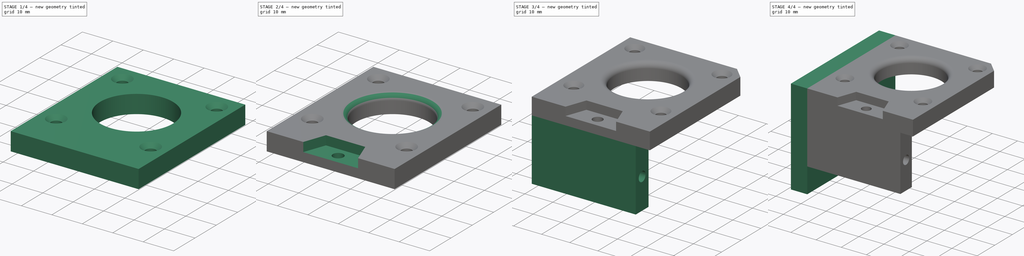
[diagram: build sequence overview — one tinted view per stage of 4, left to right]
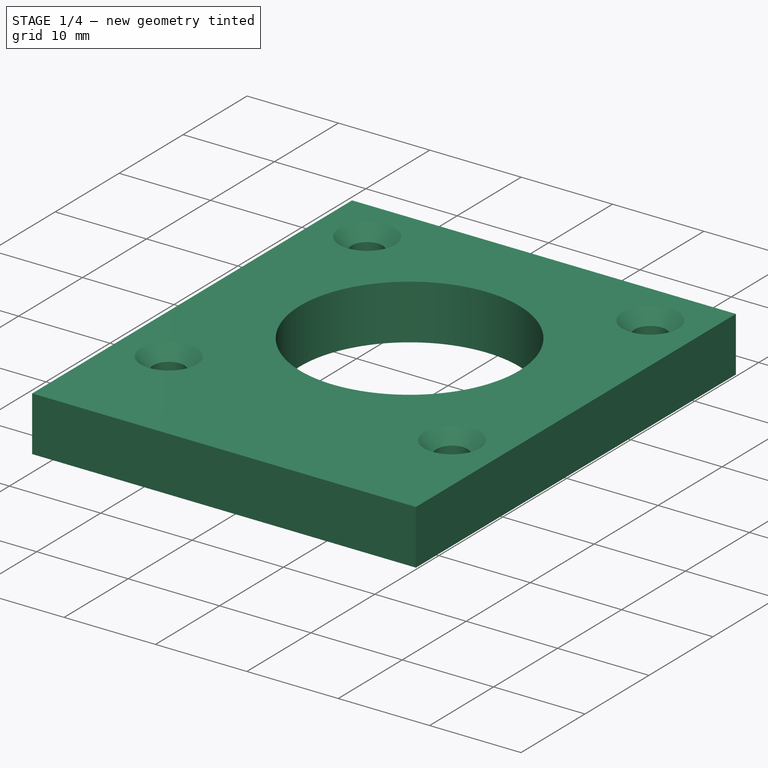
[diagram: stage 1 of 4 — iso view after this stage's code; geometry added in this stage tinted green]
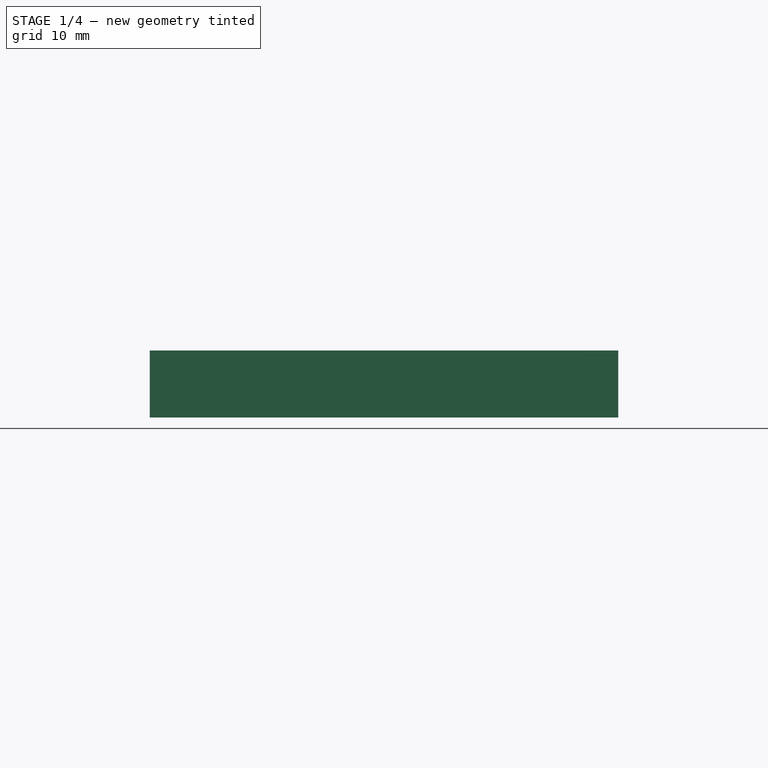
[diagram: stage 1 of 4 — front view after this stage's code; geometry added in this stage tinted green]
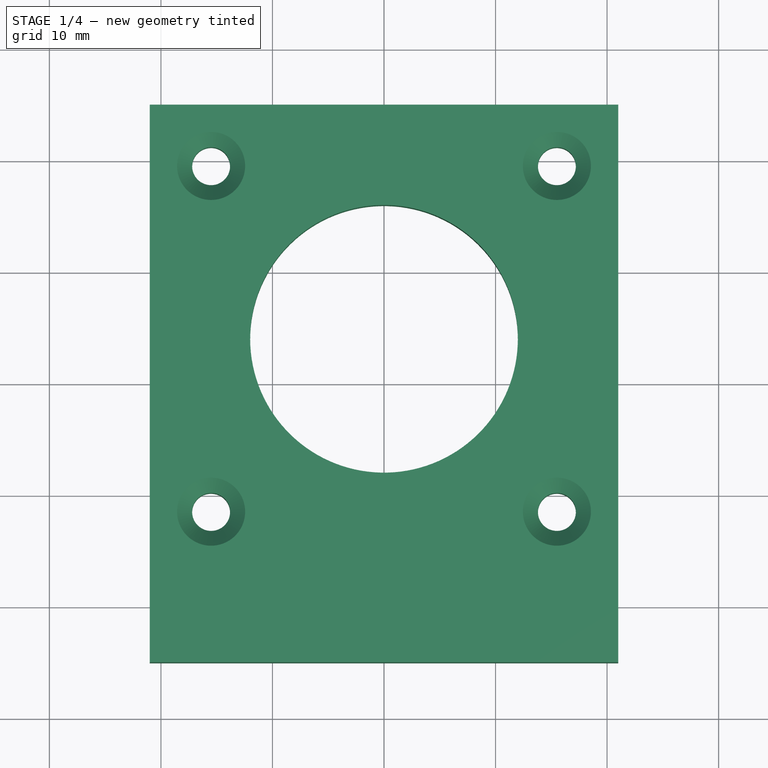
[diagram: stage 1 of 4 — top view after this stage's code; geometry added in this stage tinted green]
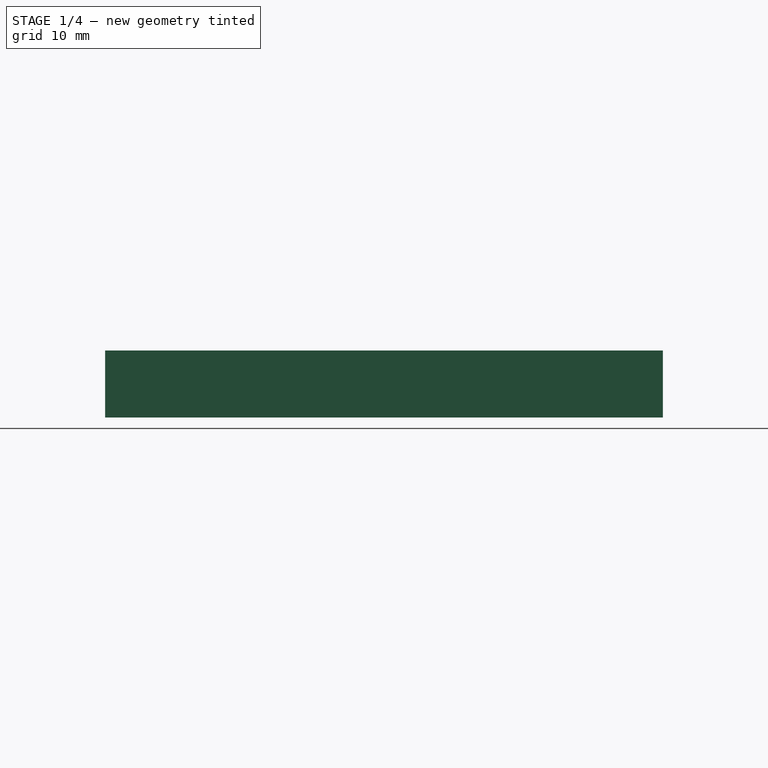
[diagram: stage 1 of 4 — right view after this stage's code; geometry added in this stage tinted green]
FCSTD DOCUMENT  (FreeCAD 0.22R38334 (Git))
Label: MH004-1
License: All rights reserved
LicenseURL: http://en.wikipedia.org/wiki/All_rights_reserved
objects: Sketcher::SketchObject×10, PartDesign::Pocket×5, PartDesign::SubShapeBinder×4, PartDesign::Body×4, PartDesign::Pad×3, PartDesign::Hole×2, PartDesign::Fillet×1, PartDesign::Chamfer×1, Part::MultiFuse×1, App::Part×1
note: 65 computed .brp shape members not serialized (recipe doc carries the construction recipe); baked Part::Feature solids carry a one-line shape summary decoded from their .brp

FEATURE [PartDesign::SubShapeBinder] Binder016
  BindCopyOnChange = 0
  BindMode = 0
  ClaimChildren = false
  Context = -> Part003 [Body013.Binder016.]
  Fuse = false
  MakeFace = true
  OffsetFill = false
  OffsetIntersection = false
  OffsetJoinType = 0
  OffsetOpenResult = false
  PartialLoad = false
  Relative = true
  Support = -> [Body012[Sketch026.]]
  _Version = 2
FEATURE [PartDesign::SubShapeBinder] Binder017
  BindCopyOnChange = 0
  BindMode = 0
  ClaimChildren = false
  Context = -> Part003 [Body014.Binder017.]
  Fuse = false
  MakeFace = true
  OffsetFill = false
  OffsetIntersection = false
  OffsetJoinType = 0
  OffsetOpenResult = false
  PartialLoad = false
  Relative = true
  Support = -> [Body012[Sketch026.]]
  _Version = 2
FEATURE [PartDesign::SubShapeBinder] Binder025
  BindCopyOnChange = 0
  BindMode = 2
  ClaimChildren = false
  Fuse = false
  MakeFace = true
  OffsetFill = false
  OffsetIntersection = false
  OffsetJoinType = 0
  OffsetOpenResult = false
  PartialLoad = false
  Placement = pos=(-21.5,25,-2) rot=(-0.57735,-0.57735,0.57735;2.0944rad)
  Relative = true
  _Version = 2
FEATURE [PartDesign::Pad] Pad009
  Direction = (0,0,1)
  Length = 6
  Length2 = 10
  Profile = -> Binder016
  Suppressed = false
  Type = 0
FEATURE [Sketcher::SketchObject] Sketch026
  AttachmentSupport = -> [XY_Plane016]
  FullyConstrained = true
  MakeInternals = false
  MapMode = 5
  sketch-geometry (5):
    g0: LineSegment StartX=-21 StartY=-25 StartZ=0 EndX=21 EndY=-25 EndZ=0
    g1: LineSegment StartX=21 StartY=-25 StartZ=0 EndX=21 EndY=25 EndZ=0
    g2: LineSegment StartX=21 StartY=25 StartZ=0 EndX=-21 EndY=25 EndZ=0
    g3: LineSegment StartX=-21 StartY=25 StartZ=0 EndX=-21 EndY=-25 EndZ=0
    g4: GeomPoint X=0 Y=0 Z=0
  constraints (12):
    c: Coincident(g0,g1)
    c: Coincident(g1,g2)
    c: Coincident(g2,g3)
    c: Coincident(g3,g0)
    c: Horizontal(g0)
    c: Horizontal(g2)
    c: Vertical(g1)
    c: Vertical(g3)
    c: Symmetric(g2,g0,g4)
    c: Coincident(g4,g-1)
    c: DistanceY(g3,g3) = 50
    c: DistanceX(g2,g2) = 42
FEATURE [PartDesign::Body] Body012  label="Master001"
  AllowCompound = false
  Group = -> [Sketch026]
  Origin = -> Origin016
FEATURE [Sketcher::SketchObject] Sketch027
  AttachmentSupport = -> [Pad009]
  ExternalGeometry = -> [Pad009]
  FullyConstrained = true
  MakeInternals = false
  MapMode = 5
  Placement = pos=(0,0,6) rot=(0,0,1;0rad)
  sketch-geometry (13):
    g0: LineSegment StartX=-15.5 StartY=-11.5 StartZ=0 EndX=15.5 EndY=-11.5 EndZ=0
    g1: LineSegment StartX=15.5 StartY=-11.5 StartZ=0 EndX=15.5 EndY=19.5 EndZ=0
    g2: LineSegment StartX=15.5 StartY=19.5 StartZ=0 EndX=-15.5 EndY=19.5 EndZ=0
    g3: LineSegment StartX=-15.5 StartY=19.5 StartZ=0 EndX=-15.5 EndY=-11.5 EndZ=0
    g4: Circle CenterX=-15.5 CenterY=19.5 CenterZ=0 NormalX=0 NormalY=0 NormalZ=1 AngleXU=0 Radius=1.5
    g5: Circle CenterX=-15.5 CenterY=-11.5 CenterZ=0 NormalX=0 NormalY=0 NormalZ=1 AngleXU=0 Radius=1.5
    g6: Circle CenterX=15.5 CenterY=-11.5 CenterZ=0 NormalX=0 NormalY=0 NormalZ=1 AngleXU=0 Radius=1.5
    g7: Circle CenterX=15.5 CenterY=19.5 CenterZ=0 NormalX=0 NormalY=0 NormalZ=1 AngleXU=0 Radius=1.5
    g8: LineSegment StartX=-21 StartY=25 StartZ=0 EndX=-21 EndY=-17 EndZ=0
    g9: LineSegment StartX=-21 StartY=-17 StartZ=0 EndX=21 EndY=-17 EndZ=0
    g10: LineSegment StartX=21 StartY=-17 StartZ=0 EndX=21 EndY=25 EndZ=0
    g11: LineSegment StartX=21 StartY=25 StartZ=0 EndX=-21 EndY=25 EndZ=0
    g12: GeomPoint X=2.3e-15 Y=4 Z=0
  constraints (31):
    c: Coincident(g0,g1)
    c: Coincident(g1,g2)
    c: Coincident(g2,g3)
    c: Coincident(g3,g0)
    c: Horizontal(g0)
    c: Horizontal(g2)
    c: Vertical(g1)
    c: Vertical(g3)
    c: Equal(g2,g3)
    c: DistanceX(g2,g2) = 31
    c: Coincident(g4,g2)
    c: Coincident(g5,g0)
    c: Coincident(g6,g0)
    c: Coincident(g7,g1)
    c: Equal(g4,g7)
    c: Equal(g7,g6)
    c: Equal(g6,g5)
    c: Diameter(g4) = 3
    c: Coincident(g8,g9)
    c: Coincident(g9,g10)
    c: Coincident(g10,g11)
    c: Coincident(g11,g8)
    c: Vertical(g8)
    c: Vertical(g10)
    c: Horizontal(g9)
    c: Horizontal(g11)
    c: Symmetric(g8,g9,g12)
    c: Equal(g8,g9)
    c: Symmetric(g2,g0,g12)
    c: Coincident(g10,g-5)
    c: DistanceX(g11,g11) = 42
FEATURE [PartDesign::Hole] Hole007
  BaseFeature = -> Pad009
  CustomThreadClearance = 0
  Depth = 120.592
  DepthType = 1
  Diameter = 3.4
  DrillForDepth = false
  DrillPoint = 1
  DrillPointAngle = 118
  HoleCutCountersinkAngle = 90
  HoleCutCustomValues = false
  HoleCutDepth = 0
  HoleCutDiameter = 6.1
  HoleCutType = 2
  ModelThread = false
  Profile = -> Sketch027
  Suppressed = false
  Tapered = false
  TaperedAngle = 90
  ThreadClass = 0
  ThreadDepth = 120.592
  ThreadDepthType = 0
  ThreadDirection = 0
  ThreadFit = 0
  ThreadSize = 9
  ThreadType = 1
  Threaded = false
  UseCustomThreadClearance = false
FEATURE [Sketcher::SketchObject] Sketch030
  AttachmentSupport = -> [Hole007]
  ExternalGeometry = -> [Sketch027]
  FullyConstrained = true
  MakeInternals = false
  MapMode = 5
  Placement = pos=(0,0,6) rot=(0,0,1;0rad)
  sketch-geometry (1):
    g0: Circle CenterX=2.8e-15 CenterY=4 CenterZ=0 NormalX=0 NormalY=0 NormalZ=1 AngleXU=0 Radius=12
  constraints (2):
    c: Symmetric(g-3,g-4,g0)
    c: Diameter(g0) = 24
FEATURE [PartDesign::Pocket] Pocket008
  BaseFeature = -> Hole007
  Direction = (0,0,-1)
  Length = 5
  Length2 = 5
  Profile = -> Sketch030
  ReferenceAxis = -> Sketch030 [N_Axis]
  Suppressed = false
  Type = 1
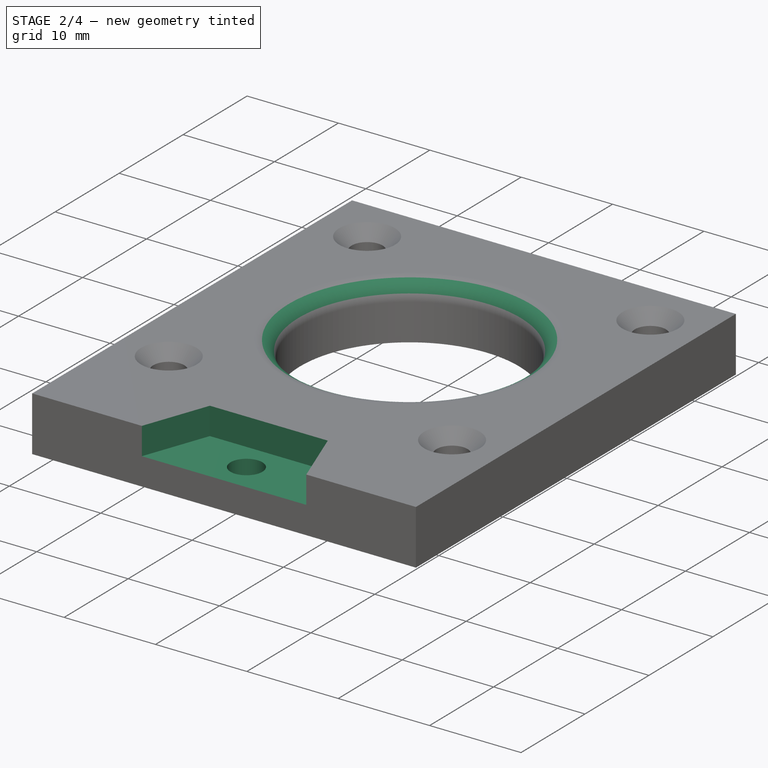
[diagram: stage 2 of 4 — iso view after this stage's code; geometry added in this stage tinted green]
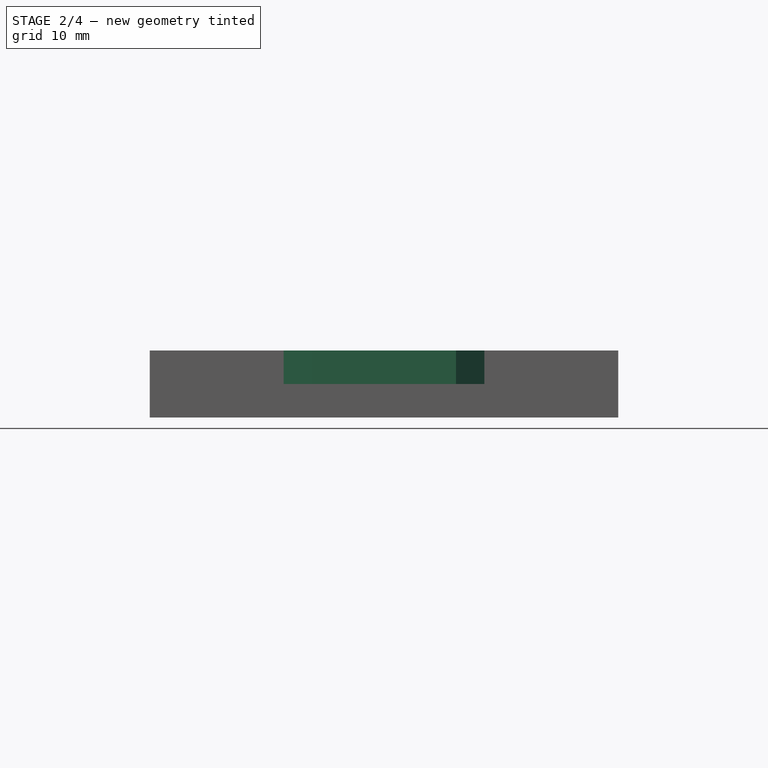
[diagram: stage 2 of 4 — front view after this stage's code; geometry added in this stage tinted green]
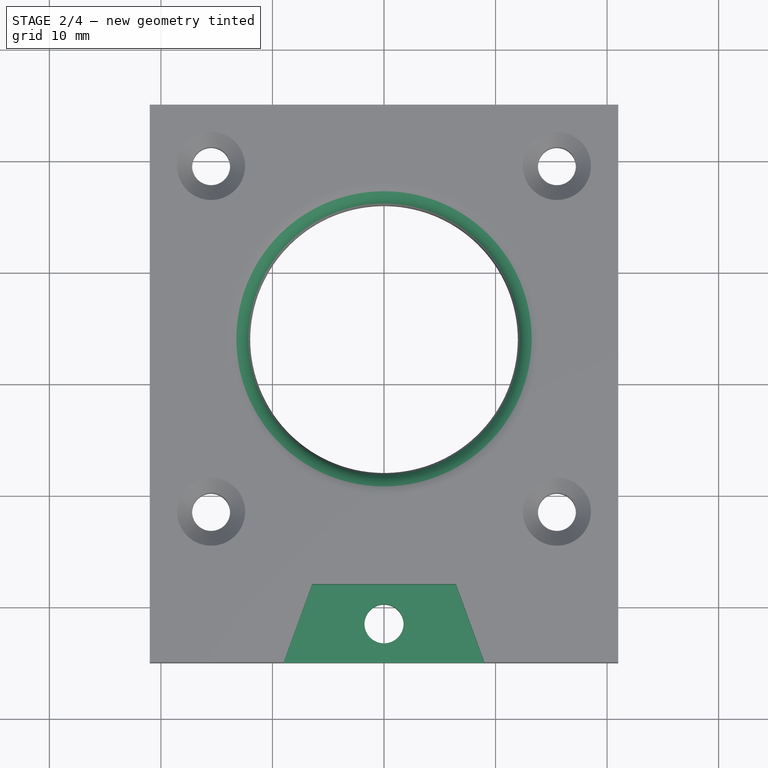
[diagram: stage 2 of 4 — top view after this stage's code; geometry added in this stage tinted green]
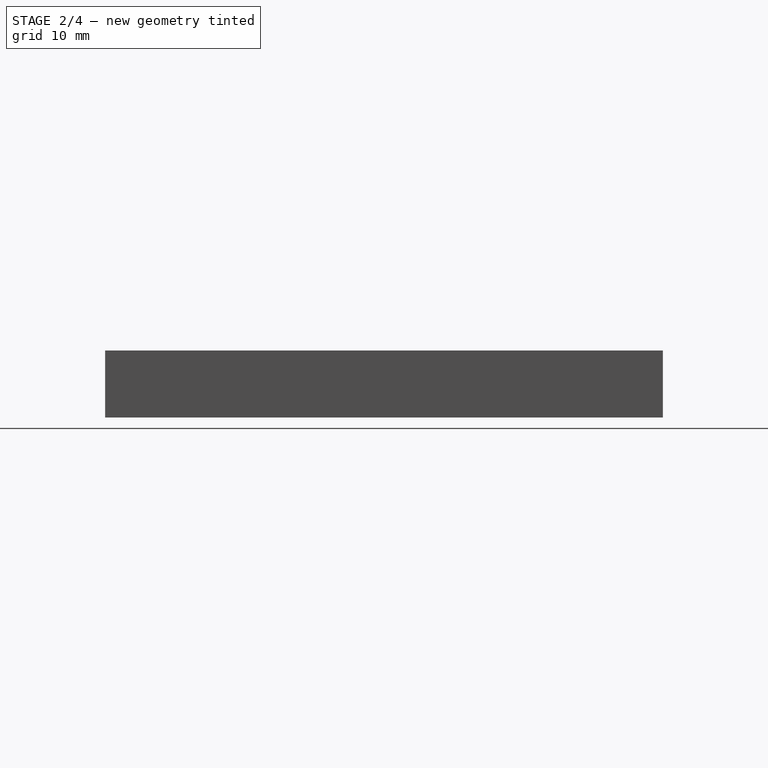
[diagram: stage 2 of 4 — right view after this stage's code; geometry added in this stage tinted green]
FEATURE [PartDesign::Fillet] Fillet003
  Base = -> Pocket008 [Edge21]
  BaseFeature = -> Pocket008
  Radius = 2
  SupportTransform = false
  Suppressed = false
  UseAllEdges = false
FEATURE [Sketcher::SketchObject] Sketch031
  AttachmentSupport = -> [Fillet003]
  ExternalGeometry = -> [Fillet003]
  FullyConstrained = true
  MakeInternals = false
  MapMode = 5
  Placement = pos=(0,0,6) rot=(0,0,1;0rad)
  sketch-geometry (4):
    g0: LineSegment StartX=-9 StartY=-25 StartZ=0 EndX=-6.45221 EndY=-18 EndZ=0
    g1: LineSegment StartX=-6.45221 StartY=-18 StartZ=0 EndX=6.45221 EndY=-18 EndZ=0
    g2: LineSegment StartX=6.45221 StartY=-18 StartZ=0 EndX=9 EndY=-25 EndZ=0
    g3: LineSegment StartX=9 StartY=-25 StartZ=0 EndX=-9 EndY=-25 EndZ=0
  constraints (10):
    c: PointOnObject(g0,g-3)
    c: Coincident(g0,g1)
    c: Coincident(g1,g2)
    c: Coincident(g2,g3)
    c: Coincident(g3,g0)
    c: Symmetric(g0,g2,g-2)
    c: Symmetric(g0,g1,g-2)
    c: Angle(g0,g1) = 1.91986
    c: DistanceX(g3,g3) = 18
    c: Distance(g1,g3) = 7
FEATURE [PartDesign::Pocket] Pocket012
  BaseFeature = -> Fillet003
  Direction = (0,0,-1)
  Length = 3
  Length2 = 5
  Profile = -> Sketch031
  ReferenceAxis = -> Sketch031 [N_Axis]
  Suppressed = false
  Type = 0
FEATURE [PartDesign::Body] Body014  label="MH002"
  AllowCompound = false
  Group = -> [Binder017,Sketch028,Pad010,Binder025,Sketch039,Hole011]
  Origin = -> Origin018
  Tip = -> Hole011
FEATURE [Sketcher::SketchObject] Sketch040
  AttachmentSupport = -> [Pocket012]
  ExternalGeometry = -> [Pocket012]
  FullyConstrained = true
  MakeInternals = false
  MapMode = 5
  Placement = pos=(0,0,3) rot=(0,0,1;0rad)
  sketch-geometry (2):
    g0: Circle CenterX=0 CenterY=-21.5 CenterZ=0 NormalX=0 NormalY=0 NormalZ=1 AngleXU=0 Radius=1.75
    g1: LineSegment StartX=0 StartY=-18 StartZ=0 EndX=0 EndY=-25 EndZ=0
  constraints (5):
    c: PointOnObject(g0,g-2)
    c: Symmetric(g-3,g-3,g1)
    c: Symmetric(g1,g1,g0)
    c: Diameter(g0) = 3.5
    c: PointOnObject(g1,g-4)
FEATURE [PartDesign::Pocket] Pocket013
  BaseFeature = -> Pocket012
  Direction = (0,0,-1)
  Length = 5
  Length2 = 5
  Profile = -> Sketch040
  ReferenceAxis = -> Sketch040 [N_Axis]
  Suppressed = false
  Type = 1
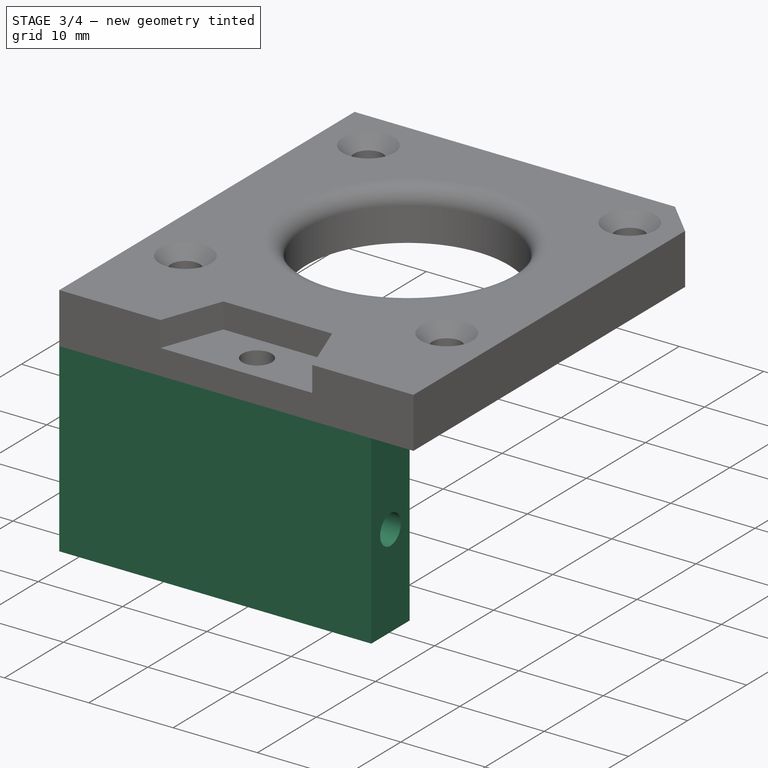
[diagram: stage 3 of 4 — iso view after this stage's code; geometry added in this stage tinted green]
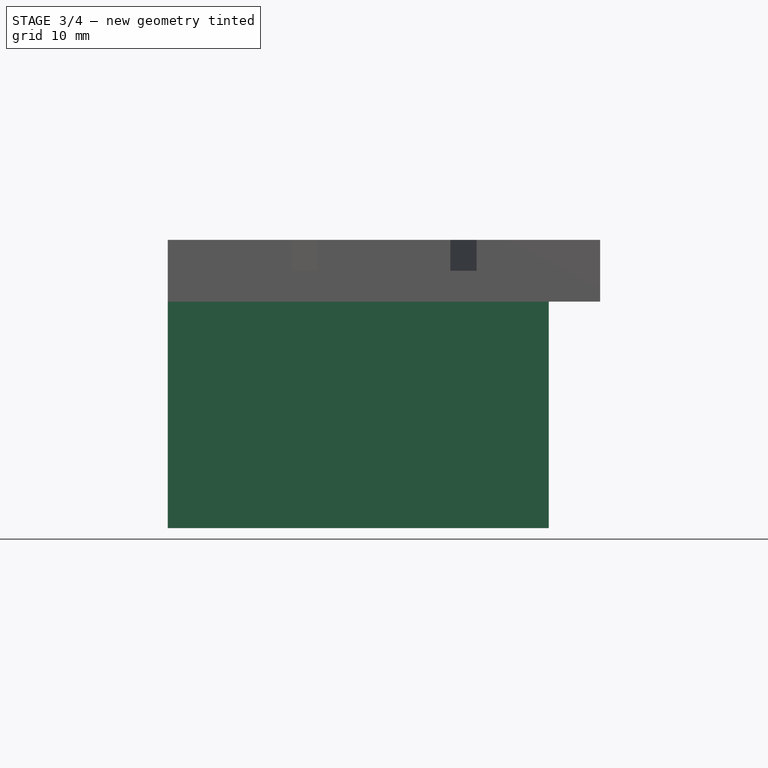
[diagram: stage 3 of 4 — front view after this stage's code; geometry added in this stage tinted green]
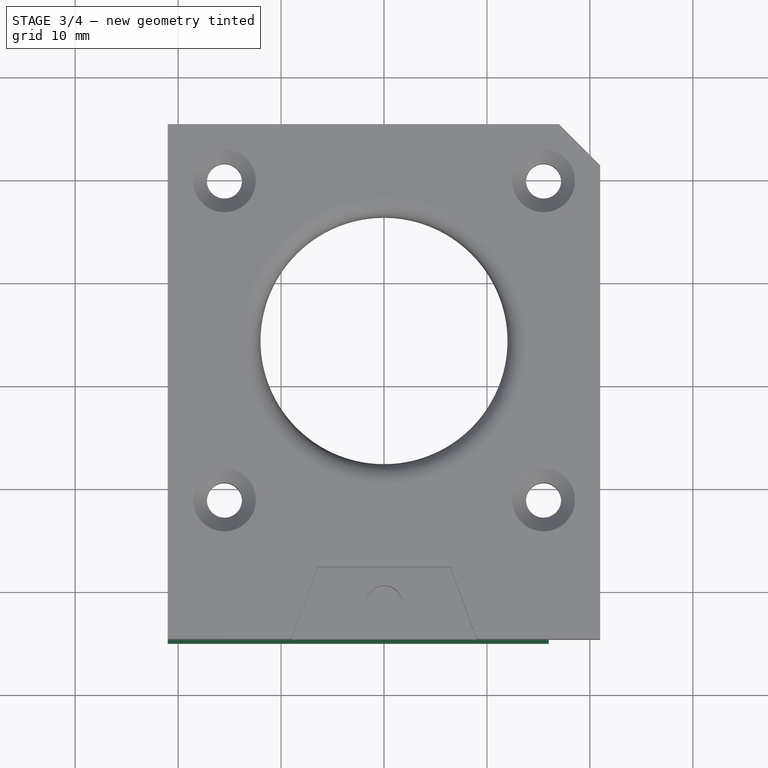
[diagram: stage 3 of 4 — top view after this stage's code; geometry added in this stage tinted green]
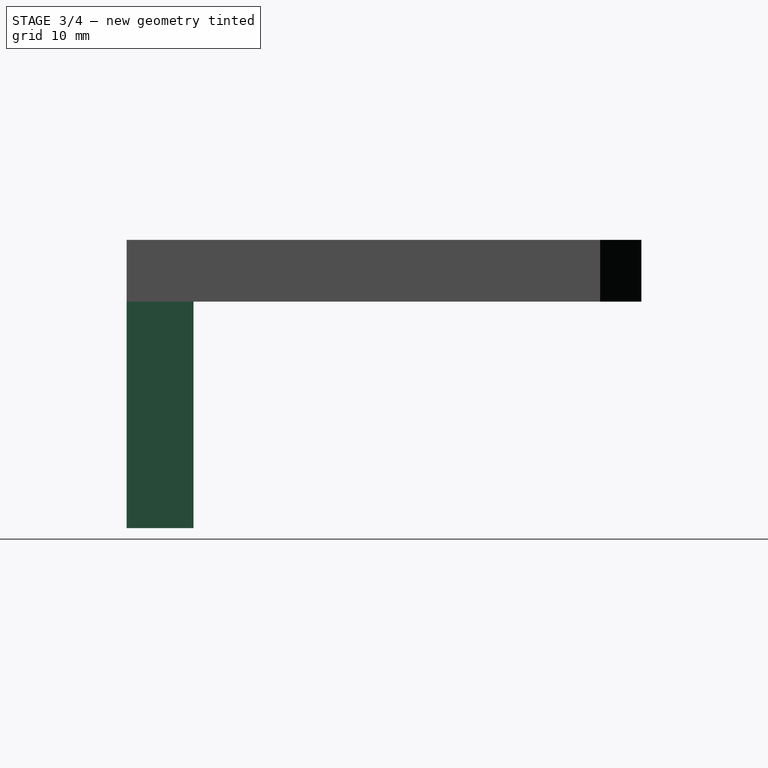
[diagram: stage 3 of 4 — right view after this stage's code; geometry added in this stage tinted green]
FEATURE [PartDesign::SubShapeBinder] Binder
  BindCopyOnChange = 0
  BindMode = 0
  ClaimChildren = false
  Context = -> Part003 [Body.Binder.]
  Fuse = false
  MakeFace = true
  OffsetFill = false
  OffsetIntersection = false
  OffsetJoinType = 0
  OffsetOpenResult = false
  PartialLoad = false
  Relative = true
  Support = -> [Body012[Sketch026.]]
  _Version = 2
FEATURE [Sketcher::SketchObject] Sketch
  AttachmentSupport = -> [Binder]
  ExternalGeometry = -> [Binder]
  FullyConstrained = true
  MakeInternals = false
  MapMode = 5
  sketch-geometry (4):
    g0: LineSegment StartX=-21 StartY=-18.5 StartZ=0 EndX=-21 EndY=-25 EndZ=0
    g1: LineSegment StartX=-21 StartY=-25 StartZ=0 EndX=16 EndY=-25 EndZ=0
    g2: LineSegment StartX=16 StartY=-25 StartZ=0 EndX=16 EndY=-18.5 EndZ=0
    g3: LineSegment StartX=16 StartY=-18.5 StartZ=0 EndX=-21 EndY=-18.5 EndZ=0
  constraints (12):
    c: Coincident(g0,g1)
    c: Coincident(g1,g2)
    c: Coincident(g2,g3)
    c: Coincident(g3,g0)
    c: Vertical(g0)
    c: Vertical(g2)
    c: Horizontal(g1)
    c: Horizontal(g3)
    c: PointOnObject(g0,g-3)
    c: DistanceY(g2,g2) = 6.5
    c: PointOnObject(g1,g-4)
    c: DistanceX(g1,g-4) = 5
FEATURE [PartDesign::Pad] Pad
  Direction = (0,0,1)
  Length = 22
  Length2 = 10
  Profile = -> Sketch
  ReferenceAxis = -> Sketch [N_Axis]
  Reversed = true
  Suppressed = false
  Type = 0
FEATURE [Sketcher::SketchObject] Sketch041
  AttachmentSupport = -> [Pad]
  ExternalGeometry = -> [Pad]
  FullyConstrained = true
  MakeInternals = false
  MapMode = 5
  Placement = pos=(0,0,-22) rot=(1,0,0;3.14159rad)
  sketch-geometry (4):
    g0: LineSegment StartX=-21 StartY=21.75 StartZ=0 EndX=16 EndY=21.75 EndZ=0
    g1: Circle CenterX=-16 CenterY=21.75 CenterZ=0 NormalX=0 NormalY=0 NormalZ=1 AngleXU=0 Radius=1.75
    g2: Circle CenterX=11 CenterY=21.75 CenterZ=0 NormalX=0 NormalY=0 NormalZ=1 AngleXU=0 Radius=1.75
    g3: GeomPoint X=-2.5 Y=21.75 Z=0
  constraints (9):
    c: PointOnObject(g0,g-3)
    c: Symmetric(g-4,g-4,g0)
    c: Horizontal(g0)
    c: PointOnObject(g1,g0)
    c: Diameter(g1) = 3.5
    c: Equal(g1,g2)
    c: Symmetric(g0,g0,g3)
    c: Symmetric(g1,g2,g3)
    c: Distance(g0,g2) = 3.25
FEATURE [PartDesign::Pocket] Pocket
  BaseFeature = -> Pad
  Direction = (0,0,1)
  Length = 4
  Length2 = 5
  Profile = -> Sketch041
  ReferenceAxis = -> Sketch041 [N_Axis]
  Suppressed = false
  Type = 0
FEATURE [Sketcher::SketchObject] Sketch042
  AttachmentSupport = -> [Pocket]
  ExternalGeometry = -> [Pocket]
  FullyConstrained = true
  MakeInternals = false
  MapMode = 5
  Placement = pos=(16,0,0) rot=(0.57735,0.57735,0.57735;2.0944rad)
  sketch-geometry (2):
    g0: LineSegment StartX=-21.75 StartY=2.4e-15 StartZ=0 EndX=-21.75 EndY=-22 EndZ=0
    g1: Circle CenterX=-21.75 CenterY=-11 CenterZ=0 NormalX=0 NormalY=0 NormalZ=1 AngleXU=0 Radius=1.75
  constraints (4):
    c: Symmetric(g-6,g-6,g0)
    c: Symmetric(g-5,g-5,g0)
    c: Diameter(g1) = 3.5
    c: Symmetric(g0,g0,g1)
FEATURE [PartDesign::Pocket] Pocket014
  BaseFeature = -> Pocket
  Direction = (-1,0,0)
  Length = 3
  Length2 = 5
  Profile = -> Sketch042
  ReferenceAxis = -> Sketch042 [N_Axis]
  Suppressed = false
  Type = 0
FEATURE [PartDesign::Body] Body  label="MH003"
  AllowCompound = false
  Group = -> [Binder,Sketch,Pad,Sketch041,Pocket,Sketch042,Pocket014]
  Origin = -> Origin
  Tip = -> Pocket014
FEATURE [PartDesign::Chamfer] Chamfer
  Angle = 45
  Base = -> Pocket013 [Edge17]
  BaseFeature = -> Pocket013
  ChamferType = 0
  FlipDirection = false
  Size = 4
  Size2 = 1
  SupportTransform = false
  Suppressed = false
  UseAllEdges = false
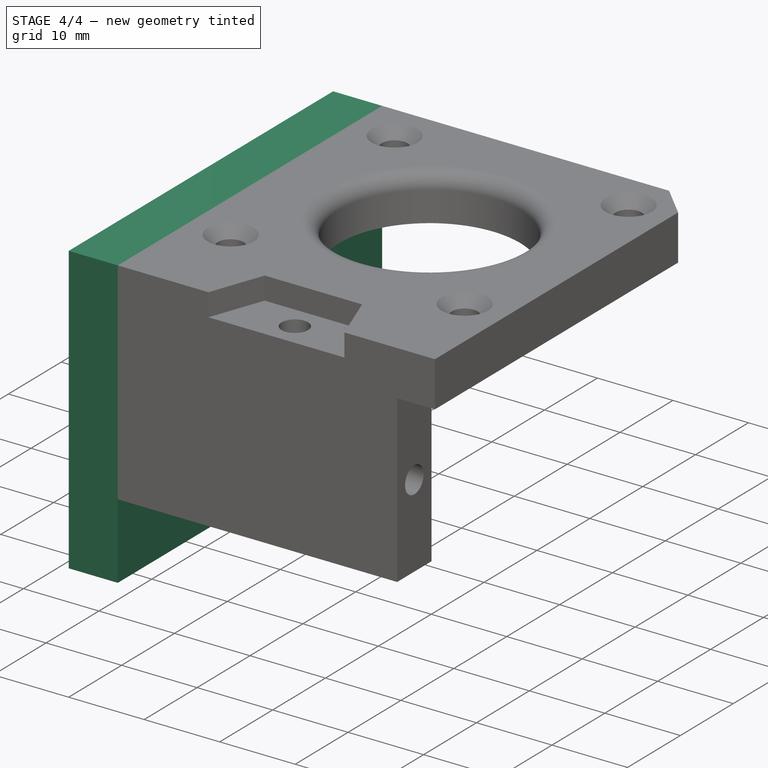
[diagram: stage 4 of 4 — iso view after this stage's code; geometry added in this stage tinted green]
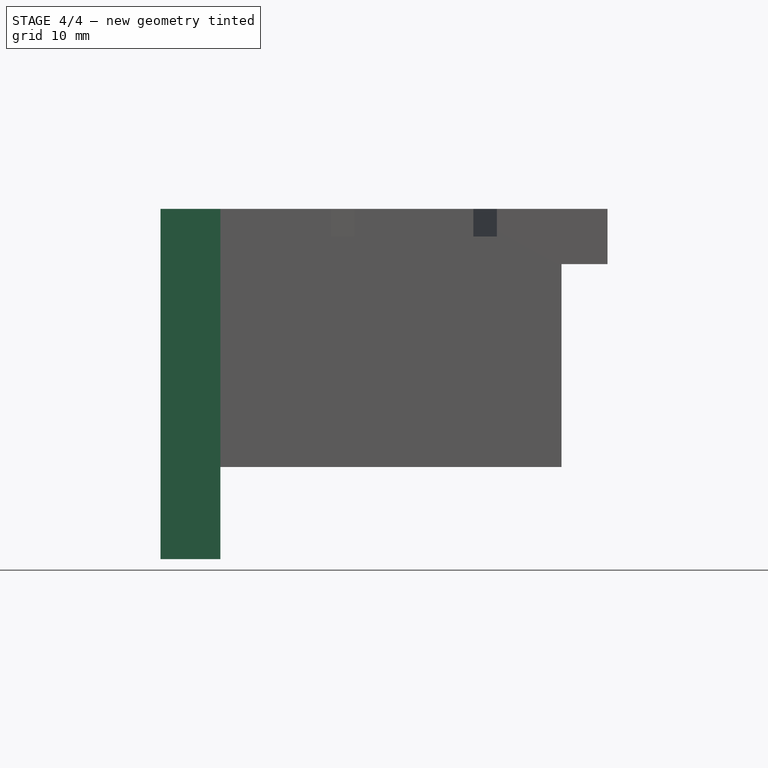
[diagram: stage 4 of 4 — front view after this stage's code; geometry added in this stage tinted green]
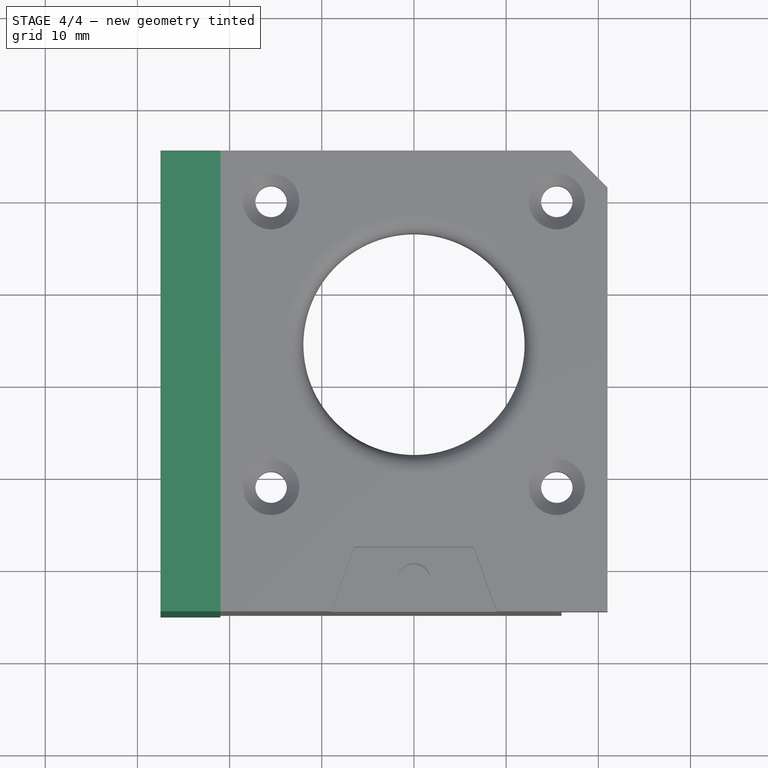
[diagram: stage 4 of 4 — top view after this stage's code; geometry added in this stage tinted green]
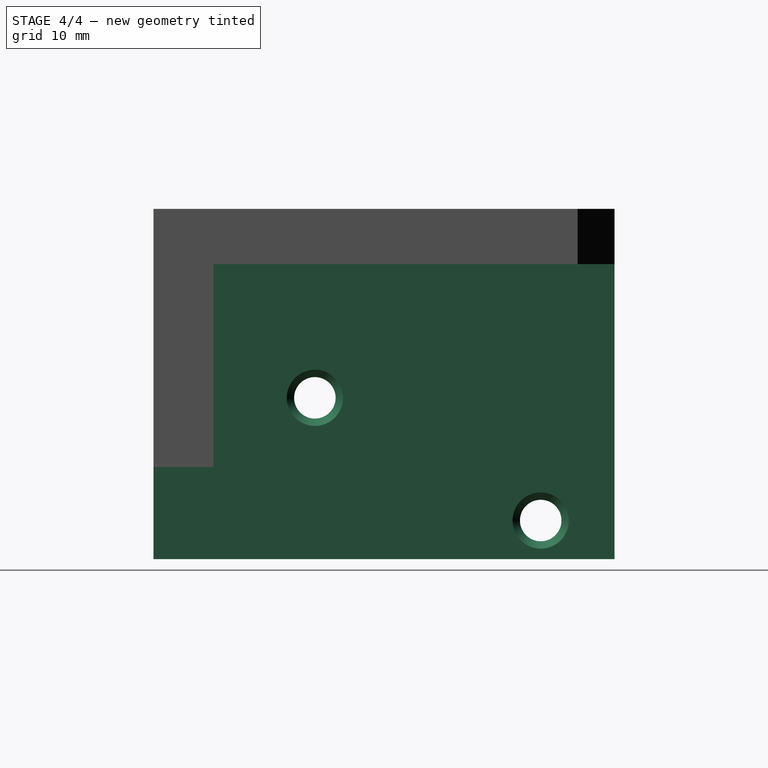
[diagram: stage 4 of 4 — right view after this stage's code; geometry added in this stage tinted green]
FEATURE [Sketcher::SketchObject] Sketch028
  AttachmentSupport = -> [Binder017]
  ExternalGeometry = -> [Binder017]
  FullyConstrained = true
  MakeInternals = false
  MapMode = 5
  sketch-geometry (4):
    g0: LineSegment StartX=-21 StartY=25 StartZ=0 EndX=-27.5 EndY=25 EndZ=0
    g1: LineSegment StartX=-27.5 StartY=25 StartZ=0 EndX=-27.5 EndY=-25 EndZ=0
    g2: LineSegment StartX=-27.5 StartY=-25 StartZ=0 EndX=-21 EndY=-25 EndZ=0
    g3: LineSegment StartX=-21 StartY=-25 StartZ=0 EndX=-21 EndY=25 EndZ=0
  constraints (10):
    c: Coincident(g0,g1)
    c: Coincident(g1,g2)
    c: Coincident(g2,g3)
    c: Coincident(g3,g0)
    c: Horizontal(g0)
    c: Horizontal(g2)
    c: Vertical(g1)
    c: Coincident(g0,g-3)
    c: Coincident(g2,g-3)
    c: DistanceX(g2,g2) = 6.5
FEATURE [PartDesign::Pad] Pad010
  Direction = (0,0,1)
  Length = 6
  Length2 = 32
  Profile = -> Sketch028
  ReferenceAxis = -> Sketch028 [N_Axis]
  Suppressed = false
  Type = 4
FEATURE [Sketcher::SketchObject] Sketch039
  AttachmentSupport = -> [Binder025]
  ExternalGeometry = -> [Binder025]
  FullyConstrained = true
  MakeInternals = false
  MapMode = 5
  Placement = pos=(-21,25,-2) rot=(0.57735,0.57735,0.57735;2.0944rad)
  sketch-geometry (2):
    g0: Circle CenterX=-32.5 CenterY=-12.5 CenterZ=0 NormalX=0 NormalY=0 NormalZ=1 AngleXU=0 Radius=2
    g1: Circle CenterX=-8 CenterY=-25.8112 CenterZ=0 NormalX=0 NormalY=0 NormalZ=1 AngleXU=0 Radius=2.65
  constraints (4):
    c: Coincident(g0,g-4)
    c: PointOnObject(g-4,g0)
    c: Coincident(g1,g-3)
    c: PointOnObject(g-3,g1)
FEATURE [PartDesign::Hole] Hole011
  BaseFeature = -> Pad010
  CustomThreadClearance = 0
  Depth = 25
  DepthType = 0
  Diameter = 4.5
  DrillForDepth = false
  DrillPoint = 1
  DrillPointAngle = 118
  HoleCutCountersinkAngle = 90
  HoleCutCustomValues = false
  HoleCutDepth = 0
  HoleCutDiameter = 6.1
  HoleCutType = 2
  ModelThread = false
  Profile = -> Sketch039
  Suppressed = false
  Tapered = false
  TaperedAngle = 90
  ThreadClass = 0
  ThreadDepth = 25
  ThreadDepthType = 0
  ThreadDirection = 0
  ThreadFit = 0
  ThreadSize = 11
  ThreadType = 1
  Threaded = false
  UseCustomThreadClearance = false
FEATURE [PartDesign::Body] Body013  label="MH001"
  AllowCompound = false
  Group = -> [Binder016,Pad009,Sketch027,Hole007,Sketch030,Pocket008,Fillet003,Sketch031,Pocket012,Sketch040,Pocket013,Chamfer]
  Origin = -> Origin017
  Tip = -> Chamfer
FEATURE [Part::MultiFuse] Fusion  label="MHF001"
  Shapes = -> [Body013,Body014,Body]
FEATURE [App::Part] Part003  label="MH004-1_"
  Group = -> [Body012,Body013,Body,Body014,Fusion]
  Origin = -> Origin015
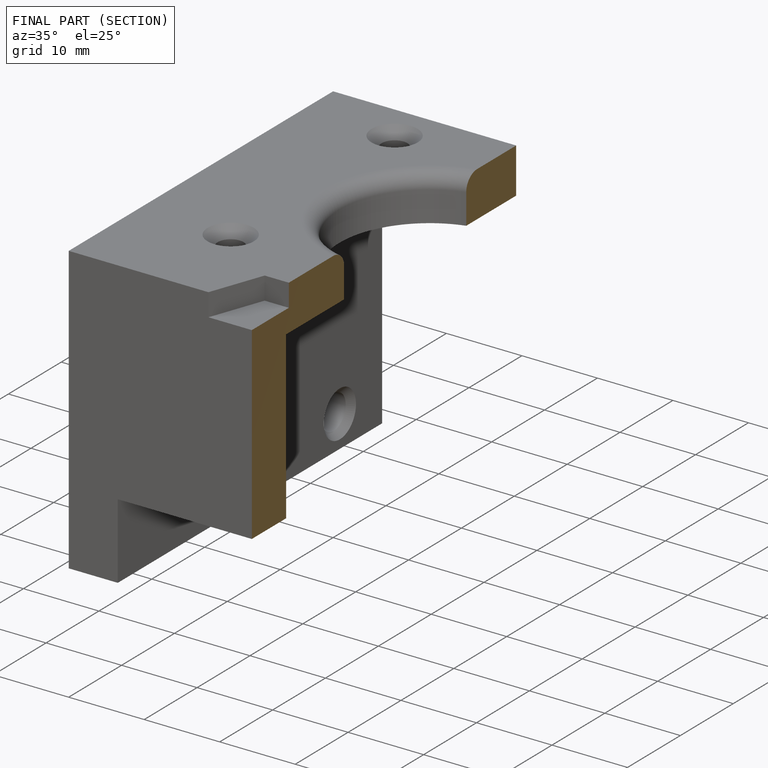
[diagram: finished part — half-section view (interior)]
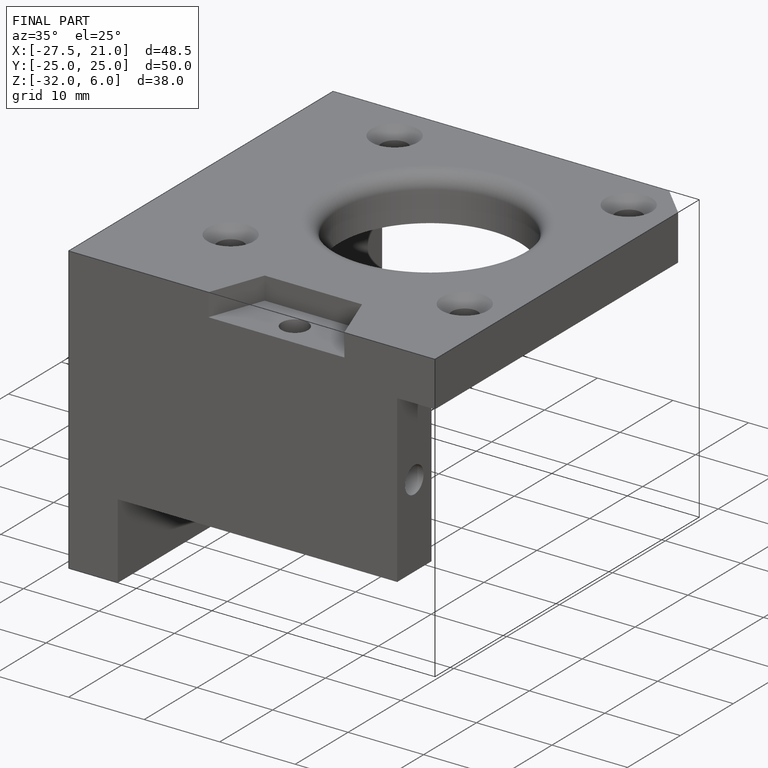
[diagram: finished part — iso view with bounding-box wireframe]
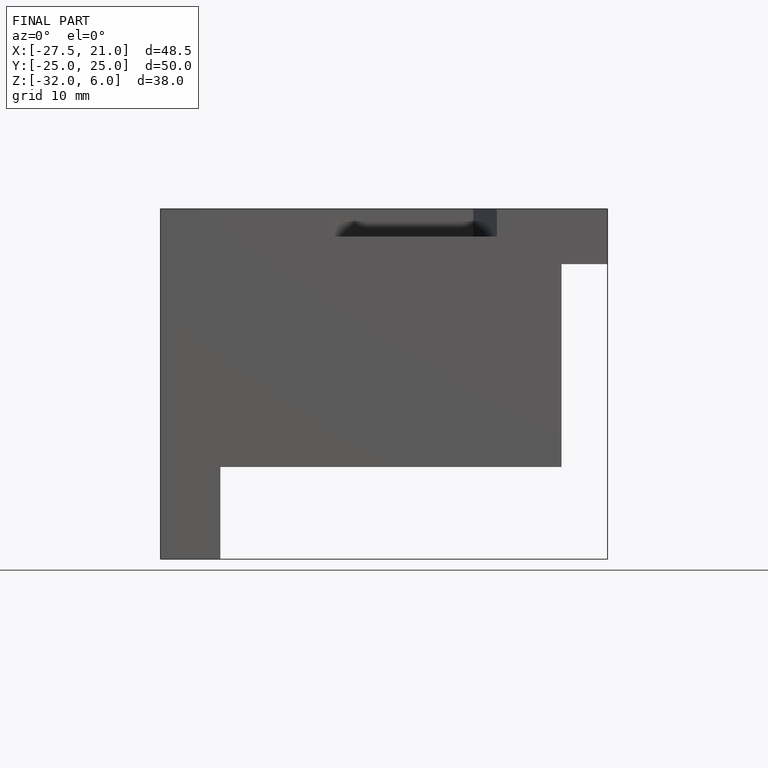
[diagram: finished part — front view with bounding-box wireframe]
